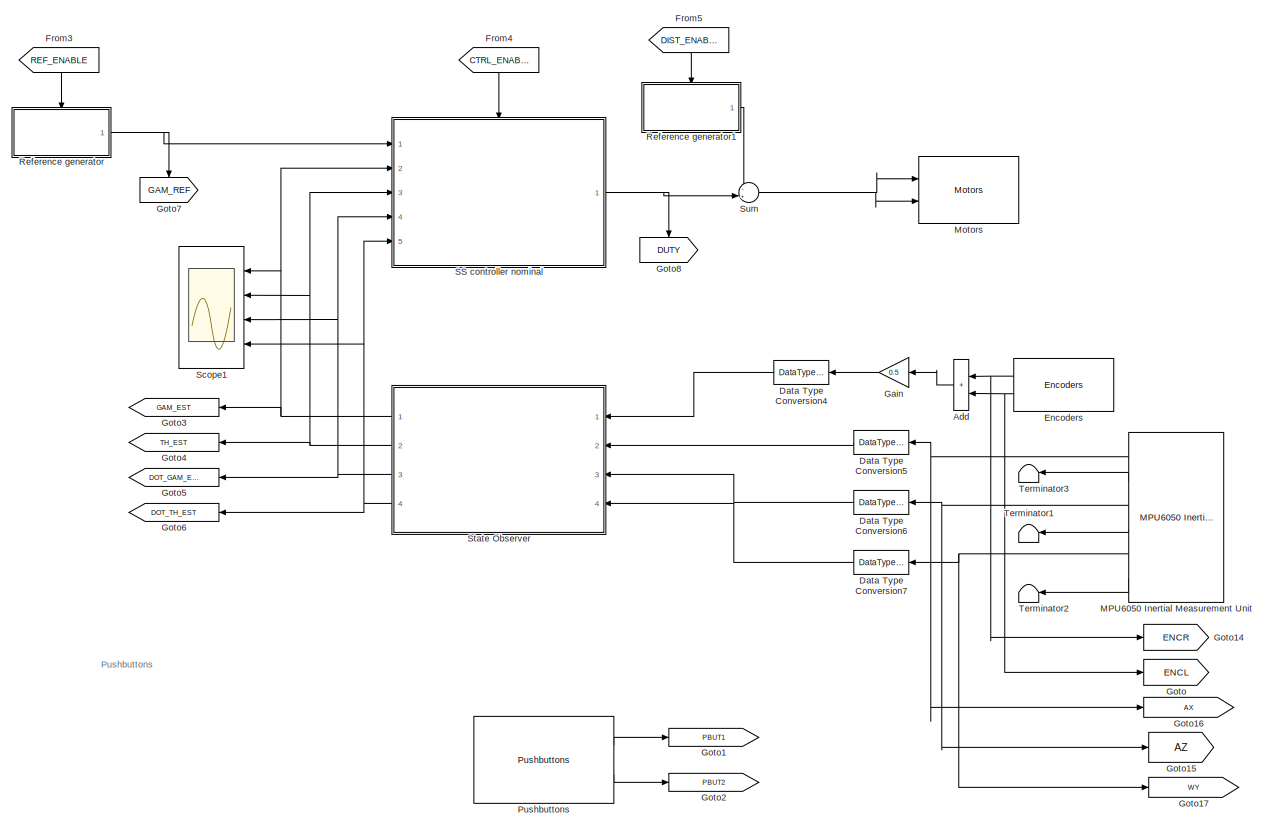
[diagram: root canvas - part 1/3, top left region]
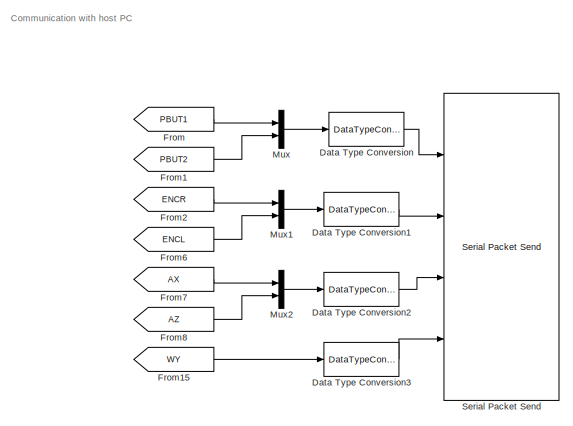
[diagram: root canvas - part 2/3, middle right region]
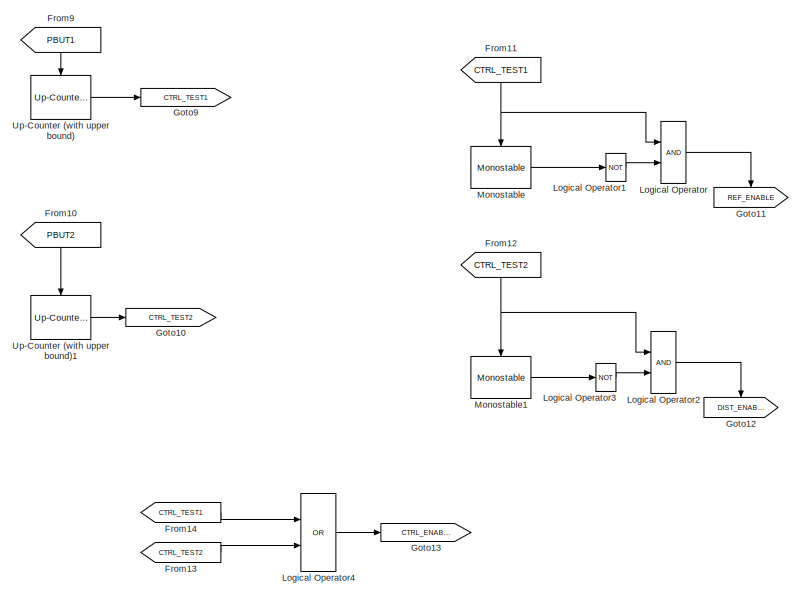
[diagram: root canvas - part 3/3, bottom left region]
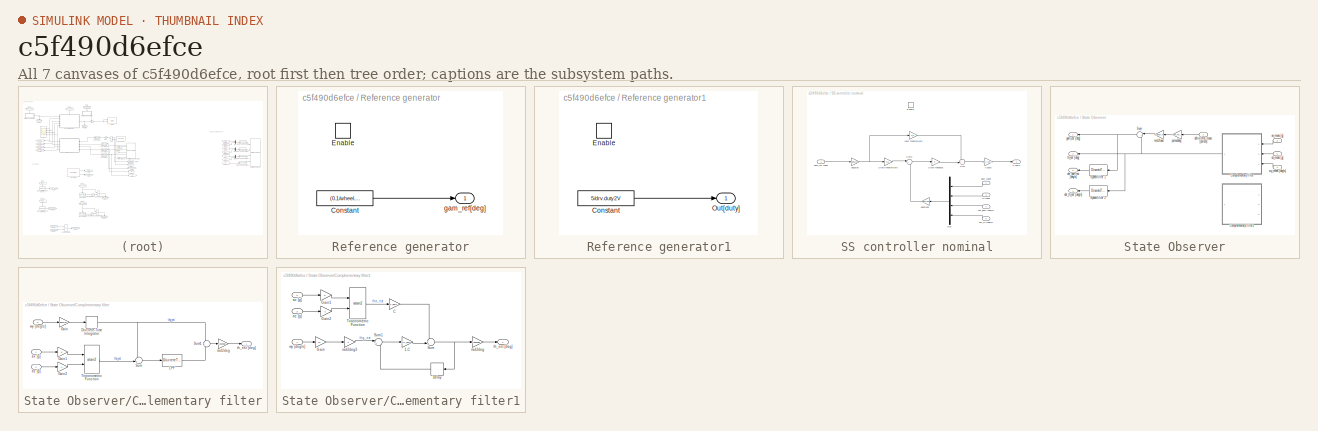
[diagram: thumbnail index - all 7 canvases of the model, root first then tree order]
MODEL slx_c5f490d6efce
KIND model
CONFIG AbsTol = auto
CONFIG EnableMultiTasking = on
CONFIG FixedStep = 0.01
CONFIG MaxStep = auto
CONFIG MinStep = auto
CONFIG RelTol = 1e-3
CONFIG SampleTimeConstraint = Unconstrained
CONFIG SolverName = FixedStepDiscrete
CONFIG StartTime = 0.0
CONFIG StopTime = 10.0
BLOCK [Sum] Add
  IconShape = rectangular
  Ports = [2, 1]
BLOCK [DataTypeConversion] Data Type Conversion
  OutDataTypeStr = uint8
  RndMeth = Floor
  SaturateOnIntegerOverflow = off
BLOCK [DataTypeConversion] Data Type Conversion1
  OutDataTypeStr = int32
  RndMeth = Floor
  SaturateOnIntegerOverflow = off
BLOCK [DataTypeConversion] Data Type Conversion2
  OutDataTypeStr = single
  RndMeth = Floor
  SaturateOnIntegerOverflow = off
BLOCK [DataTypeConversion] Data Type Conversion3
  OutDataTypeStr = single
  RndMeth = Floor
  SaturateOnIntegerOverflow = off
BLOCK [DataTypeConversion] Data Type Conversion4
  OutDataTypeStr = double
  RndMeth = Floor
  SaturateOnIntegerOverflow = off
BLOCK [DataTypeConversion] Data Type Conversion5
  OutDataTypeStr = double
  RndMeth = Floor
  SaturateOnIntegerOverflow = off
BLOCK [DataTypeConversion] Data Type Conversion6
  OutDataTypeStr = double
  RndMeth = Floor
  SaturateOnIntegerOverflow = off
BLOCK [DataTypeConversion] Data Type Conversion7
  OutDataTypeStr = double
  RndMeth = Floor
  SaturateOnIntegerOverflow = off
BLOCK [Reference] Encoders  REF=BalRobTbx_baselib/Inputs/Encoders
  NameLocation = top
  Ports = [0, 2]
  SourceBlock = BalRobTbx_baselib/Inputs/Encoders
  SourceProductName = Balancing Robot Toolbox
  SourceType = Encoders
BLOCK [From] From
  GotoTag = PBUT1
BLOCK [From] From1
  GotoTag = PBUT2
BLOCK [From] From10
  GotoTag = PBUT2
  NameLocation = right
BLOCK [From] From11
  GotoTag = CTRL_TEST1
  NameLocation = right
BLOCK [From] From12
  GotoTag = CTRL_TEST2
  NameLocation = right
BLOCK [From] From13
  GotoTag = CTRL_TEST2
  NameLocation = top
BLOCK [From] From14
  GotoTag = CTRL_TEST1
  NameLocation = top
BLOCK [From] From15
  GotoTag = WY
BLOCK [From] From2
  GotoTag = ENCR
BLOCK [From] From3
  GotoTag = REF_ENABLE
  NameLocation = right
BLOCK [From] From4
  GotoTag = CTRL_ENABLE
  NameLocation = right
BLOCK [From] From5
  GotoTag = DIST_ENABLE
  NameLocation = right
BLOCK [From] From6
  GotoTag = ENCL
BLOCK [From] From7
  GotoTag = AX
BLOCK [From] From8
  GotoTag = AZ
BLOCK [From] From9
  GotoTag = PBUT1
  NameLocation = right
BLOCK [Gain] Gain
  Gain = 0.5
BLOCK [Goto] Goto
  GotoTag = ENCL
BLOCK [Goto] Goto1
  GotoTag = PBUT1
BLOCK [Goto] Goto10
  GotoTag = CTRL_TEST2
BLOCK [Goto] Goto11
  GotoTag = REF_ENABLE
  NameLocation = left
BLOCK [Goto] Goto12
  GotoTag = DIST_ENABLE
  NameLocation = left
BLOCK [Goto] Goto13
  GotoTag = CTRL_ENABLE
BLOCK [Goto] Goto14
  GotoTag = ENCR
BLOCK [Goto] Goto15
  GotoTag = AZ
BLOCK [Goto] Goto16
  GotoTag = AX
BLOCK [Goto] Goto17
  GotoTag = WY
BLOCK [Goto] Goto2
  GotoTag = PBUT2
BLOCK [Goto] Goto3
  GotoTag = GAM_EST
BLOCK [Goto] Goto4
  GotoTag = TH_EST
BLOCK [Goto] Goto5
  GotoTag = DOT_GAM_EST
BLOCK [Goto] Goto6
  GotoTag = DOT_TH_EST
BLOCK [Goto] Goto7
  GotoTag = GAM_REF
  NameLocation = left
BLOCK [Goto] Goto8
  GotoTag = DUTY
  NameLocation = left
BLOCK [Goto] Goto9
  GotoTag = CTRL_TEST1
BLOCK [Logic] Logical Operator
  AllPortsSameDT = off
  OutDataTypeStr = boolean
  Ports = [2, 1]
BLOCK [Logic] Logical Operator1
  AllPortsSameDT = off
  Inputs = 1
  Operator = NOT
  OutDataTypeStr = boolean
  Ports = [1, 1]
BLOCK [Logic] Logical Operator2
  AllPortsSameDT = off
  OutDataTypeStr = boolean
  Ports = [2, 1]
BLOCK [Logic] Logical Operator3
  AllPortsSameDT = off
  Inputs = 1
  Operator = NOT
  OutDataTypeStr = boolean
  Ports = [1, 1]
BLOCK [Logic] Logical Operator4
  AllPortsSameDT = off
  Operator = OR
  OutDataTypeStr = boolean
  Ports = [2, 1]
BLOCK [Reference] MPU6050 Inertial Measurement Unit  REF=BalRobTbx_baselib/Inputs/MPU6050
Inertial Measurement Unit
  NameLocation = top
  Ports = [0, 6]
  SourceBlock = BalRobTbx_baselib/Inputs/MPU6050\nInertial Measurement Unit
  SourceProductName = Balancing Robot Toolbox
  SourceType = MPU6050
BLOCK [Reference] Monostable  REF=BalRobTbx_baselib/Utilities/Monostable
  Ports = [0, 1, 1]
  SourceBlock = BalRobTbx_baselib/Utilities/Monostable
  SourceProductName = Balancing Robot Toolbox
BLOCK [Reference] Monostable1  REF=BalRobTbx_baselib/Utilities/Monostable
  Ports = [0, 1, 1]
  SourceBlock = BalRobTbx_baselib/Utilities/Monostable
  SourceProductName = Balancing Robot Toolbox
BLOCK [Reference] Motors  REF=BalRobTbx_baselib/Outputs/Motors
  Ports = [2]
  SourceBlock = BalRobTbx_baselib/Outputs/Motors
  SourceProductName = Balancing Robot Toolbox
  SourceType = Motors
BLOCK [Mux] Mux
  DisplayOption = bar
  Inputs = 2
  Ports = [2, 1]
BLOCK [Mux] Mux1
  DisplayOption = bar
  Inputs = 2
  Ports = [2, 1]
BLOCK [Mux] Mux2
  DisplayOption = bar
  Inputs = 2
  Ports = [2, 1]
BLOCK [Reference] Pushbuttons  REF=BalRobTbx_baselib/Inputs/Pushbuttons
  Ports = [0, 2]
  SourceBlock = BalRobTbx_baselib/Inputs/Pushbuttons
  SourceProductName = Balancing Robot Toolbox
  SourceType = Pushbuttons
BLOCK [SubSystem] Reference generator
  Ports = [0, 1, 1]
  RequestExecContextInheritance = off
BLOCK [Constant] Reference generator/Constant
  SampleTime = 0.01
  Value = (0.1/wheel.r)*rad2deg
BLOCK [EnablePort] Reference generator/Enable
  Ports = []
  StatesWhenEnabling = reset
BLOCK [Outport] Reference generator/gam_ref[deg]
  InitialOutput = [0]
BLOCK [SubSystem] Reference generator1
  Ports = [0, 1, 1]
  RequestExecContextInheritance = off
BLOCK [Constant] Reference generator1/Constant
  SampleTime = 0.01
  Value = 5/drv.duty2V
BLOCK [EnablePort] Reference generator1/Enable
  Ports = []
  StatesWhenEnabling = reset
BLOCK [Outport] Reference generator1/Out[duty]
  InitialOutput = [0]
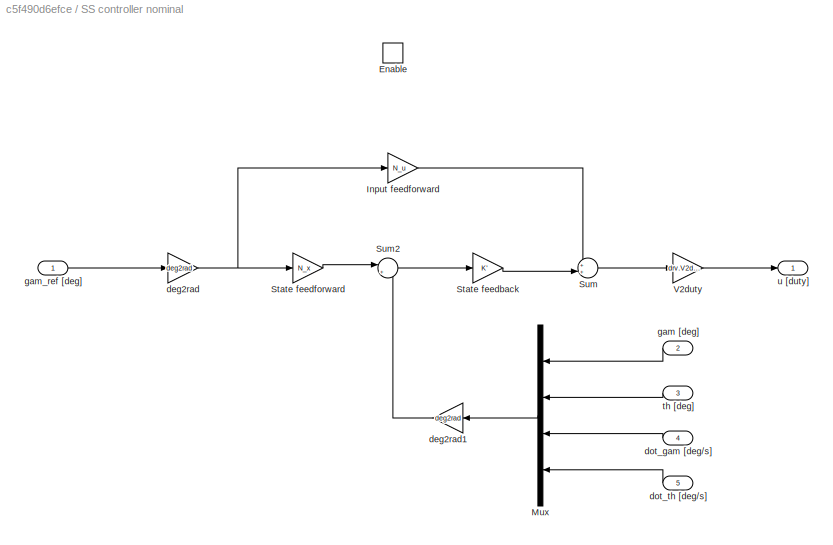
BLOCK [SubSystem] SS controller nominal
  Ports = [5, 1, 1]
  RequestExecContextInheritance = off
BLOCK [EnablePort] SS controller nominal/Enable
  Ports = []
  StatesWhenEnabling = reset
BLOCK [Gain] SS controller nominal/Input feedforward
  Gain = N_u
BLOCK [Mux] SS controller nominal/Mux
  DisplayOption = bar
  Ports = [4, 1]
BLOCK [Gain] SS controller nominal/State feedback
  Gain = K'
  Multiplication = Matrix(u*K)
BLOCK [Gain] SS controller nominal/State feedforward	
  Gain = N_x
  Multiplication = Matrix(u*K)
BLOCK [Sum] SS controller nominal/Sum
  Inputs = ++|
  Ports = [2, 1]
BLOCK [Sum] SS controller nominal/Sum2
  Inputs = |+-
  Ports = [2, 1]
BLOCK [Gain] SS controller nominal/V2duty
  Gain = drv.V2duty
BLOCK [Gain] SS controller nominal/deg2rad
  Gain = deg2rad
BLOCK [Gain] SS controller nominal/deg2rad1
  Gain = deg2rad
BLOCK [Inport] SS controller nominal/dot_gam [deg//s]
  Port = 4
BLOCK [Inport] SS controller nominal/dot_th [deg//s]
  Port = 5
BLOCK [Inport] SS controller nominal/gam [deg]
  Port = 2
BLOCK [Inport] SS controller nominal/gam_ref [deg]
BLOCK [Inport] SS controller nominal/th [deg]
  Port = 3
BLOCK [Outport] SS controller nominal/u [duty]
  InitialOutput = [0]
BLOCK [Scope] Scope1
  Floating = off
  NumInputPorts = 4
  Ports = [4]
  ScopeSpecificationString = Simulink.scopes.TimeScopeBlockCfg('CurrentConfiguration', extmgr.ConfigurationSet(extmgr.Configuration('Core','General UI',true),extmgr.Configuration('Core','Source UI',true),extmgr.Configuration('Sources','WiredSimulink',true,'DataLogging',true,'DataLoggingSaveFormat','StructureWithTime'),extmgr.Configuration('Visuals','Time Domain',true,'SerializedDisplays',{struct('MinYLimReal','-1314.10845','M...<+3526ch>
BLOCK [Reference] Serial Packet Send  REF=BalRobTbx_baselib/Communication/Serial Packet Send
  Ports = [4]
  SourceBlock = BalRobTbx_baselib/Communication/Serial Packet Send
  SourceProductName = Balancing Robot Toolbox
  SourceType = Serial Packet Send
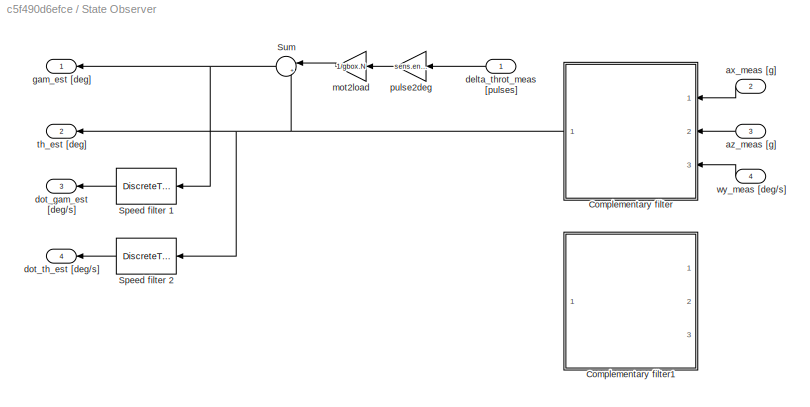
BLOCK [SubSystem] State Observer
  Ports = [4, 4]
  RequestExecContextInheritance = off
BLOCK [SubSystem] State Observer/Complementary filter
  Ports = [3, 1]
  RequestExecContextInheritance = off
BLOCK [DiscreteIntegrator] State Observer/Complementary filter/Discrete-Time Integrator
  ICPrevOutput = DiscIntNeverNeededParam
  ICPrevScaledInput = DiscIntNeverNeededParam
  InitialConditionSetting = Auto
  Ports = [1, 1]
  SampleTime = Ts
  gainval = 1
BLOCK [Gain] State Observer/Complementary filter/Gain
  Gain = deg2rad
BLOCK [Gain] State Observer/Complementary filter/Gain1
BLOCK [Gain] State Observer/Complementary filter/Gain2
  Gain = -1
BLOCK [DiscreteTransferFcn] State Observer/Complementary filter/LPF
  Denominator = [denLPFz]
  InputPortMap = u0
  Numerator = [numLPFz]
  Ports = [1, 1]
  SampleTime = Ts
BLOCK [Sum] State Observer/Complementary filter/Sum
  Inputs = -+|
  Ports = [2, 1]
BLOCK [Sum] State Observer/Complementary filter/Sum1
  Ports = [2, 1]
BLOCK [Trigonometry] State Observer/Complementary filter/Trigonometric Function
  Operator = atan2
  Ports = [2, 1]
BLOCK [Inport] State Observer/Complementary filter/ax [g] 
BLOCK [Inport] State Observer/Complementary filter/az [g] 
  Port = 2
BLOCK [Gain] State Observer/Complementary filter/rad2deg
  Gain = rad2deg
BLOCK [Outport] State Observer/Complementary filter/th_est [deg] 
BLOCK [Inport] State Observer/Complementary filter/wy [deg//s]
  Port = 3
BLOCK [SubSystem] State Observer/Complementary filter1
  Commented = on
  Ports = [3, 1]
  RequestExecContextInheritance = off
BLOCK [Gain] State Observer/Complementary filter1/1-C
  Gain = 1-C_gain
BLOCK [Gain] State Observer/Complementary filter1/C
  Gain = C_gain
BLOCK [Delay] State Observer/Complementary filter1/Delay
  DelayLength = 1
  InputPortMap = u0
  NameLocation = top
  Ports = [1, 1]
BLOCK [Gain] State Observer/Complementary filter1/Gain
  Gain = 11
BLOCK [Gain] State Observer/Complementary filter1/Gain1
BLOCK [Gain] State Observer/Complementary filter1/Gain2
  Gain = -1
BLOCK [Sum] State Observer/Complementary filter1/Sum
  Inputs = ++|
  Ports = [2, 1]
BLOCK [Sum] State Observer/Complementary filter1/Sum1
  Inputs = |++
  Ports = [2, 1]
BLOCK [Trigonometry] State Observer/Complementary filter1/Trigonometric Function
  Operator = atan2
  Ports = [2, 1]
BLOCK [Inport] State Observer/Complementary filter1/ax [g] 
  Port = 2
BLOCK [Inport] State Observer/Complementary filter1/az [g] 
  Port = 3
BLOCK [Gain] State Observer/Complementary filter1/rad2deg
  Gain = rad2deg
BLOCK [Gain] State Observer/Complementary filter1/rad2deg3
  Gain = T
BLOCK [Outport] State Observer/Complementary filter1/th_est [deg] 
BLOCK [Inport] State Observer/Complementary filter1/wy [deg//s]
BLOCK [DiscreteTransferFcn] State Observer/Speed filter 1
  Denominator = [denHw]
  InputPortMap = u0
  Numerator = [numHw]
  Ports = [1, 1]
  SampleTime = Ts
BLOCK [DiscreteTransferFcn] State Observer/Speed filter 2
  Denominator = [denHw]
  InputPortMap = u0
  Numerator = [numHw]
  Ports = [1, 1]
  SampleTime = Ts
BLOCK [Sum] State Observer/Sum
  Inputs = |++
  NameLocation = top
  Ports = [2, 1]
BLOCK [Inport] State Observer/ax_meas [g] 
  Port = 2
BLOCK [Inport] State Observer/az_meas [g] 
  Port = 3
BLOCK [Inport] State Observer/delta_throt_meas [pulses] 
BLOCK [Outport] State Observer/dot_gam_est [deg//s]
  Port = 3
BLOCK [Outport] State Observer/dot_th_est [deg//s]
  Port = 4
BLOCK [Outport] State Observer/gam_est [deg]
BLOCK [Gain] State Observer/mot2load
  Gain = 1/gbox.N
BLOCK [Gain] State Observer/pulse2deg
  Gain = sens.enc.pulse2deg
BLOCK [Outport] State Observer/th_est [deg]
  Port = 2
BLOCK [Inport] State Observer/wy_meas [deg//s]
  Port = 4
BLOCK [Sum] Sum
  Inputs = -+|
  Ports = [2, 1]
BLOCK [Terminator] Terminator1
BLOCK [Terminator] Terminator2
BLOCK [Terminator] Terminator3
BLOCK [Reference] Up-Counter (with upper bound)  REF=BalRobTbx_baselib/Utilities/Up-Counter
(with upper bound)
  Ports = [0, 1, 0, 1]
  SourceBlock = BalRobTbx_baselib/Utilities/Up-Counter\n(with upper bound)
  SourceProductName = Balancing Robot Toolbox
BLOCK [Reference] Up-Counter (with upper bound)1  REF=BalRobTbx_baselib/Utilities/Up-Counter
(with upper bound)
  Ports = [0, 1, 0, 1]
  SourceBlock = BalRobTbx_baselib/Utilities/Up-Counter\n(with upper bound)
  SourceProductName = Balancing Robot Toolbox
ANNOTATION (root): Communication with host PC
ANNOTATION (root): Pushbuttons
LINE Add:1 -> Gain:1
LINE Data Type Conversion1:1 -> Serial Packet Send:2
LINE Data Type Conversion2:1 -> Serial Packet Send:3
LINE Data Type Conversion3:1 -> Serial Packet Send:4
LINE Data Type Conversion4:1 -> State Observer:1
LINE Data Type Conversion5:1 -> State Observer:2
LINE Data Type Conversion6:1 -> State Observer:3
LINE Data Type Conversion7:1 -> State Observer:4
LINE Data Type Conversion:1 -> Serial Packet Send:1
NET Encoders:1 -> Add:1, Goto14:1
NET Encoders:2 -> Add:2, Goto:1
LINE From10:1 -> Up-Counter (with upper bound)1:trigger
NET From11:1 -> Logical Operator:1, Monostable:enable
NET From12:1 -> Logical Operator2:1, Monostable1:enable
LINE From13:1 -> Logical Operator4:2
LINE From14:1 -> Logical Operator4:1
LINE From15:1 -> Data Type Conversion3:1
LINE From1:1 -> Mux:2
LINE From2:1 -> Mux1:1
LINE From3:1 -> Reference generator:enable
LINE From4:1 -> SS controller nominal:enable
LINE From5:1 -> Reference generator1:enable
LINE From6:1 -> Mux1:2
LINE From7:1 -> Mux2:1
LINE From8:1 -> Mux2:2
LINE From9:1 -> Up-Counter (with upper bound):trigger
LINE From:1 -> Mux:1
LINE Gain:1 -> Data Type Conversion4:1
LINE Logical Operator1:1 -> Logical Operator:2
LINE Logical Operator2:1 -> Goto12:1
LINE Logical Operator3:1 -> Logical Operator2:2
LINE Logical Operator4:1 -> Goto13:1
LINE Logical Operator:1 -> Goto11:1
NET MPU6050 Inertial Measurement Unit:1 -> Data Type Conversion5:1, Goto16:1
LINE MPU6050 Inertial Measurement Unit:2 -> Terminator3:1
NET MPU6050 Inertial Measurement Unit:3 -> Data Type Conversion6:1, Goto15:1
LINE MPU6050 Inertial Measurement Unit:4 -> Terminator1:1
NET MPU6050 Inertial Measurement Unit:5 -> Data Type Conversion7:1, Goto17:1
LINE MPU6050 Inertial Measurement Unit:6 -> Terminator2:1
LINE Monostable1:1 -> Logical Operator3:1
LINE Monostable:1 -> Logical Operator1:1
LINE Mux1:1 -> Data Type Conversion1:1
LINE Mux2:1 -> Data Type Conversion2:1
LINE Mux:1 -> Data Type Conversion:1
LINE Pushbuttons:1 -> Goto1:1
LINE Pushbuttons:2 -> Goto2:1
LINE Reference generator/Constant:1 -> Reference generator/gam_ref[deg]:1
LINE Reference generator1/Constant:1 -> Reference generator1/Out[duty]:1
LINE Reference generator1:1 -> Sum:1
NET Reference generator:1 -> Goto7:1, SS controller nominal:1
LINE SS controller nominal/Input feedforward:1 -> SS controller nominal/Sum:1
LINE SS controller nominal/Mux:1 -> SS controller nominal/deg2rad1:1
LINE SS controller nominal/State feedback:1 -> SS controller nominal/Sum:2
LINE SS controller nominal/State feedforward	:1 -> SS controller nominal/Sum2:1
LINE SS controller nominal/Sum2:1 -> SS controller nominal/State feedback:1
LINE SS controller nominal/Sum:1 -> SS controller nominal/V2duty:1
LINE SS controller nominal/V2duty:1 -> SS controller nominal/u [duty]:1
LINE SS controller nominal/deg2rad1:1 -> SS controller nominal/Sum2:2
NET SS controller nominal/deg2rad:1 -> SS controller nominal/Input feedforward:1, SS controller nominal/State feedforward	:1
LINE SS controller nominal/dot_gam [deg//s]:1 -> SS controller nominal/Mux:3
LINE SS controller nominal/dot_th [deg//s]:1 -> SS controller nominal/Mux:4
LINE SS controller nominal/gam [deg]:1 -> SS controller nominal/Mux:1
LINE SS controller nominal/gam_ref [deg]:1 -> SS controller nominal/deg2rad:1
LINE SS controller nominal/th [deg]:1 -> SS controller nominal/Mux:2
NET SS controller nominal:1 -> Goto8:1, Sum:2
NET State Observer/Complementary filter/Discrete-Time Integrator:1 -> State Observer/Complementary filter/Sum1:1, State Observer/Complementary filter/Sum:1
LINE State Observer/Complementary filter/Gain1:1 -> State Observer/Complementary filter/Trigonometric Function:1
LINE State Observer/Complementary filter/Gain2:1 -> State Observer/Complementary filter/Trigonometric Function:2
LINE State Observer/Complementary filter/Gain:1 -> State Observer/Complementary filter/Discrete-Time Integrator:1
LINE State Observer/Complementary filter/LPF:1 -> State Observer/Complementary filter/Sum1:2
LINE State Observer/Complementary filter/Sum1:1 -> State Observer/Complementary filter/rad2deg:1
LINE State Observer/Complementary filter/Sum:1 -> State Observer/Complementary filter/LPF:1
LINE State Observer/Complementary filter/Trigonometric Function:1 -> State Observer/Complementary filter/Sum:2
LINE State Observer/Complementary filter/ax [g] :1 -> State Observer/Complementary filter/Gain1:1
LINE State Observer/Complementary filter/az [g] :1 -> State Observer/Complementary filter/Gain2:1
LINE State Observer/Complementary filter/rad2deg:1 -> State Observer/Complementary filter/th_est [deg] :1
LINE State Observer/Complementary filter/wy [deg//s]:1 -> State Observer/Complementary filter/Gain:1
LINE State Observer/Complementary filter1/1-C:1 -> State Observer/Complementary filter1/Sum:2
LINE State Observer/Complementary filter1/C:1 -> State Observer/Complementary filter1/Sum:1
LINE State Observer/Complementary filter1/Delay:1 -> State Observer/Complementary filter1/Sum1:2
LINE State Observer/Complementary filter1/Gain1:1 -> State Observer/Complementary filter1/Trigonometric Function:1
LINE State Observer/Complementary filter1/Gain2:1 -> State Observer/Complementary filter1/Trigonometric Function:2
LINE State Observer/Complementary filter1/Gain:1 -> State Observer/Complementary filter1/rad2deg3:1
LINE State Observer/Complementary filter1/Sum1:1 -> State Observer/Complementary filter1/1-C:1
NET State Observer/Complementary filter1/Sum:1 -> State Observer/Complementary filter1/Delay:1, State Observer/Complementary filter1/rad2deg:1
LINE State Observer/Complementary filter1/Trigonometric Function:1 -> State Observer/Complementary filter1/C:1
LINE State Observer/Complementary filter1/ax [g] :1 -> State Observer/Complementary filter1/Gain1:1
LINE State Observer/Complementary filter1/az [g] :1 -> State Observer/Complementary filter1/Gain2:1
LINE State Observer/Complementary filter1/rad2deg3:1 -> State Observer/Complementary filter1/Sum1:1
LINE State Observer/Complementary filter1/rad2deg:1 -> State Observer/Complementary filter1/th_est [deg] :1
LINE State Observer/Complementary filter1/wy [deg//s]:1 -> State Observer/Complementary filter1/Gain:1
NET State Observer/Complementary filter:1 -> State Observer/Speed filter 2:1, State Observer/Sum:2, State Observer/th_est [deg]:1
LINE State Observer/Speed filter 1:1 -> State Observer/dot_gam_est [deg//s]:1
LINE State Observer/Speed filter 2:1 -> State Observer/dot_th_est [deg//s]:1
NET State Observer/Sum:1 -> State Observer/Speed filter 1:1, State Observer/gam_est [deg]:1
LINE State Observer/ax_meas [g] :1 -> State Observer/Complementary filter:1
LINE State Observer/az_meas [g] :1 -> State Observer/Complementary filter:2
LINE State Observer/delta_throt_meas [pulses] :1 -> State Observer/pulse2deg:1
LINE State Observer/mot2load:1 -> State Observer/Sum:1
LINE State Observer/pulse2deg:1 -> State Observer/mot2load:1
LINE State Observer/wy_meas [deg//s]:1 -> State Observer/Complementary filter:3
NET State Observer:1 -> Goto3:1, SS controller nominal:2, Scope1:1
NET State Observer:2 -> Goto4:1, SS controller nominal:3, Scope1:2
NET State Observer:3 -> Goto5:1, SS controller nominal:4, Scope1:3
NET State Observer:4 -> Goto6:1, SS controller nominal:5, Scope1:4
NET Sum:1 -> Motors:1, Motors:2
LINE Up-Counter (with upper bound)1:1 -> Goto10:1
LINE Up-Counter (with upper bound):1 -> Goto9:1
note: NET lines group one-source signal fan-out (src -> all destinations, sorted); 1:1 wires keep LINE
